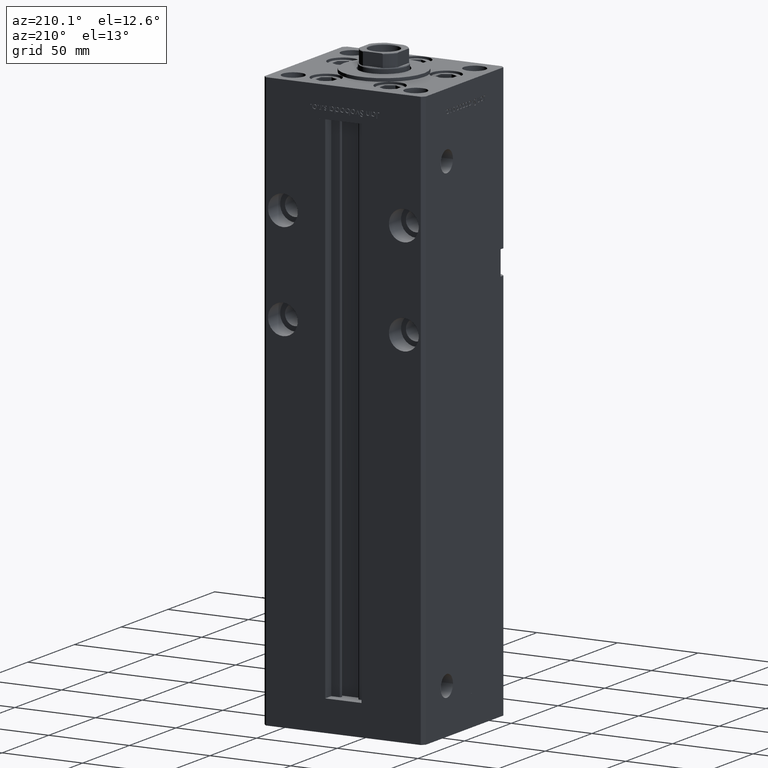
[diagram: clean part render]
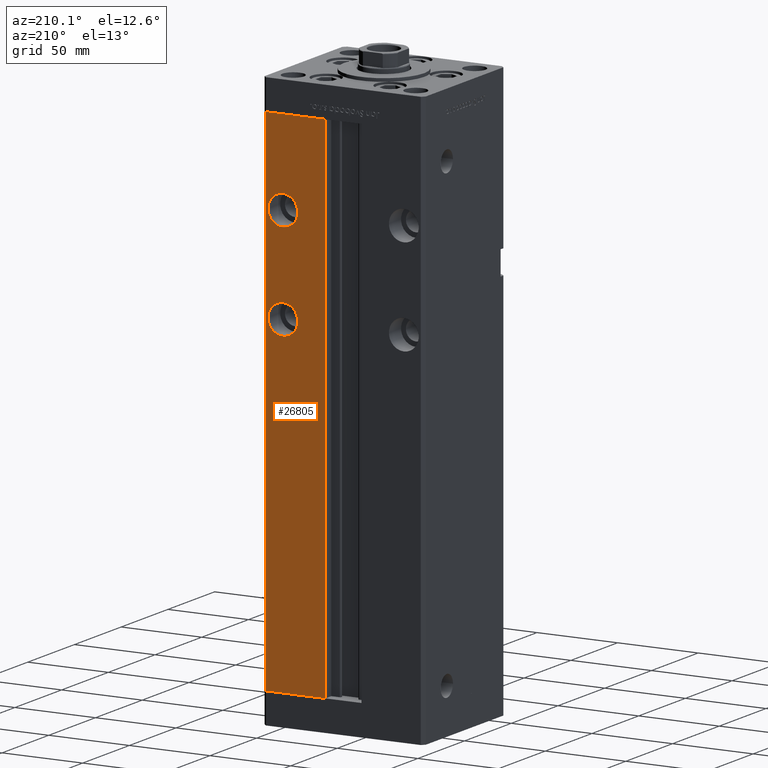
[diagram: same view with one face highlighted and labeled with its STEP entity id]
A machine part, auxiliary view. The second image highlights one B-rep face of the part: STEP entity #26805.
In plain terms, the highlighted planar face has unit normal (0, -1, 0).
Its self-contained STEP definition (entity closure, byte-faithful):
#309 = CIRCLE ( 'NONE', #22669, 9.249999999999980460 ) ;
#934 = EDGE_LOOP ( 'NONE', ( #10398, #34146 ) ) ;
#1105 = CARTESIAN_POINT ( 'NONE',  ( 48.00000000000000711, 43.50000000000000000, 0.000000000000000000 ) ) ;
#1467 = CARTESIAN_POINT ( 'NONE',  ( 37.50000000000000000, 43.50000000000000000, 265.5000000000000000 ) ) ;
#3293 = VECTOR ( 'NONE', #33733, 1000.000000000000000 ) ;
#3928 = DIRECTION ( 'NONE',  ( 0.000000000000000000, -1.000000000000000000, 0.000000000000000000 ) ) ;
#3971 = AXIS2_PLACEMENT_3D ( 'NONE', #5597, #3928, #27876 ) ;
#5357 = EDGE_CURVE ( 'NONE', #12799, #9154, #16551, .T. ) ;
#5438 = DIRECTION ( 'NONE',  ( 0.000000000000000000, 1.000000000000000000, 0.000000000000000000 ) ) ;
#5597 = CARTESIAN_POINT ( 'NONE',  ( -11.24999999999999645, 43.50000000000000000, 318.5000000000000000 ) ) ;
#7616 = DIRECTION ( 'NONE',  ( -1.000000000000000000, 0.000000000000000000, 0.000000000000000000 ) ) ;
#8010 = VERTEX_POINT ( 'NONE', #48971 ) ;
#9154 = VERTEX_POINT ( 'NONE', #25759 ) ;
#9550 = CIRCLE ( 'NONE', #21585, 9.250000000000008882 ) ;
#9561 = CARTESIAN_POINT ( 'NONE',  ( 37.50000000000000000, 43.50000000000000000, 205.5000000000000284 ) ) ;
#9564 = VERTEX_POINT ( 'NONE', #47397 ) ;
#10398 = ORIENTED_EDGE ( 'NONE', *, *, #21219, .F. ) ;
#12241 = CARTESIAN_POINT ( 'NONE',  ( 37.50000000000000000, 43.50000000000000000, 196.2500000000000000 ) ) ;
#12799 = VERTEX_POINT ( 'NONE', #34889 ) ;
#13567 = DIRECTION ( 'NONE',  ( 0.000000000000000000, 0.000000000000000000, 1.000000000000000000 ) ) ;
#14125 = LINE ( 'NONE', #42872, #26783 ) ;
#14655 = VECTOR ( 'NONE', #7616, 1000.000000000000000 ) ;
#15845 = LINE ( 'NONE', #32226, #21187 ) ;
#15895 = ORIENTED_EDGE ( 'NONE', *, *, #31412, .T. ) ;
#16551 = LINE ( 'NONE', #24603, #3293 ) ;
#16589 = EDGE_CURVE ( 'NONE', #46726, #9564, #20772, .T. ) ;
#16729 = CARTESIAN_POINT ( 'NONE',  ( 37.50000000000000000, 43.50000000000000000, 214.7500000000000284 ) ) ;
#17880 = DIRECTION ( 'NONE',  ( 0.000000000000000000, 1.000000000000000000, 0.000000000000000000 ) ) ;
#17903 = DIRECTION ( 'NONE',  ( 0.000000000000000000, 1.000000000000000000, -0.000000000000000000 ) ) ;
#18805 = CIRCLE ( 'NONE', #48807, 9.250000000000008882 ) ;
#18830 = EDGE_LOOP ( 'NONE', ( #40010, #52973 ) ) ;
#18865 = EDGE_CURVE ( 'NONE', #35153, #20534, #9550, .T. ) ;
#19035 = FACE_OUTER_BOUND ( 'NONE', #20201, .T. ) ;
#20201 = EDGE_LOOP ( 'NONE', ( #38756, #44891, #15895, #33113 ) ) ;
#20261 = LINE ( 'NONE', #41204, #14655 ) ;
#20534 = VERTEX_POINT ( 'NONE', #16729 ) ;
#20772 = CIRCLE ( 'NONE', #42240, 9.249999999999980460 ) ;
#21187 = VECTOR ( 'NONE', #23117, 1000.000000000000000 ) ;
#21219 = EDGE_CURVE ( 'NONE', #9564, #46726, #309, .T. ) ;
#21585 = AXIS2_PLACEMENT_3D ( 'NONE', #29589, #37378, #45146 ) ;
#22669 = AXIS2_PLACEMENT_3D ( 'NONE', #42250, #5438, #34725 ) ;
#23117 = DIRECTION ( 'NONE',  ( 1.000000000000000000, 0.000000000000000000, 0.000000000000000000 ) ) ;
#23269 = DIRECTION ( 'NONE',  ( -0.000000000000000000, -0.000000000000000000, -1.000000000000000000 ) ) ;
#24603 = CARTESIAN_POINT ( 'NONE',  ( 11.24999999999999645, 43.50000000000000000, 0.000000000000000000 ) ) ;
#25759 = CARTESIAN_POINT ( 'NONE',  ( 11.24999999999998934, 43.50000000000000000, 318.5000000000000000 ) ) ;
#26762 = CARTESIAN_POINT ( 'NONE',  ( 37.50000000000000000, 43.50000000000000000, 256.2500000000000568 ) ) ;
#26783 = VECTOR ( 'NONE', #23269, 1000.000000000000000 ) ;
#26805 = ADVANCED_FACE ( 'NONE', ( #26838, #51528, #19035 ), #27350, .F. ) ;
#26838 = FACE_BOUND ( 'NONE', #18830, .T. ) ;
#27350 = PLANE ( 'NONE',  #3971 ) ;
#27876 = DIRECTION ( 'NONE',  ( 0.000000000000000000, -0.000000000000000000, -1.000000000000000000 ) ) ;
#29589 = CARTESIAN_POINT ( 'NONE',  ( 37.50000000000000000, 43.50000000000000000, 205.5000000000000284 ) ) ;
#31412 = EDGE_CURVE ( 'NONE', #9154, #8010, #15845, .T. ) ;
#32226 = CARTESIAN_POINT ( 'NONE',  ( -11.24999999999999645, 43.50000000000000000, 318.5000000000000000 ) ) ;
#33113 = ORIENTED_EDGE ( 'NONE', *, *, #51309, .T. ) ;
#33733 = DIRECTION ( 'NONE',  ( -0.000000000000000000, -0.000000000000000000, 1.000000000000000000 ) ) ;
#33924 = VERTEX_POINT ( 'NONE', #1105 ) ;
#34146 = ORIENTED_EDGE ( 'NONE', *, *, #16589, .F. ) ;
#34725 = DIRECTION ( 'NONE',  ( 0.000000000000000000, 0.000000000000000000, 1.000000000000000000 ) ) ;
#34889 = CARTESIAN_POINT ( 'NONE',  ( 11.24999999999999645, 43.50000000000000000, 0.000000000000000000 ) ) ;
#35153 = VERTEX_POINT ( 'NONE', #12241 ) ;
#37378 = DIRECTION ( 'NONE',  ( 0.000000000000000000, 1.000000000000000000, -0.000000000000000000 ) ) ;
#38265 = EDGE_CURVE ( 'NONE', #20534, #35153, #18805, .T. ) ;
#38756 = ORIENTED_EDGE ( 'NONE', *, *, #43103, .T. ) ;
#40010 = ORIENTED_EDGE ( 'NONE', *, *, #38265, .F. ) ;
#41204 = CARTESIAN_POINT ( 'NONE',  ( -11.24999999999999645, 43.50000000000000000, 0.000000000000000000 ) ) ;
#42240 = AXIS2_PLACEMENT_3D ( 'NONE', #1467, #17880, #13567 ) ;
#42250 = CARTESIAN_POINT ( 'NONE',  ( 37.50000000000000000, 43.50000000000000000, 265.5000000000000000 ) ) ;
#42872 = CARTESIAN_POINT ( 'NONE',  ( 48.00000000000000711, 43.50000000000000000, 318.5000000000000000 ) ) ;
#43103 = EDGE_CURVE ( 'NONE', #33924, #12799, #20261, .T. ) ;
#44891 = ORIENTED_EDGE ( 'NONE', *, *, #5357, .T. ) ;
#45146 = DIRECTION ( 'NONE',  ( 0.000000000000000000, 0.000000000000000000, -1.000000000000000000 ) ) ;
#46726 = VERTEX_POINT ( 'NONE', #26762 ) ;
#47397 = CARTESIAN_POINT ( 'NONE',  ( 37.50000000000000000, 43.50000000000000000, 274.7500000000000000 ) ) ;
#48807 = AXIS2_PLACEMENT_3D ( 'NONE', #9561, #17903, #50657 ) ;
#48971 = CARTESIAN_POINT ( 'NONE',  ( 48.00000000000000711, 43.50000000000000000, 318.5000000000000000 ) ) ;
#50657 = DIRECTION ( 'NONE',  ( 0.000000000000000000, 0.000000000000000000, -1.000000000000000000 ) ) ;
#51309 = EDGE_CURVE ( 'NONE', #8010, #33924, #14125, .T. ) ;
#51528 = FACE_BOUND ( 'NONE', #934, .T. ) ;
#52973 = ORIENTED_EDGE ( 'NONE', *, *, #18865, .F. ) ;